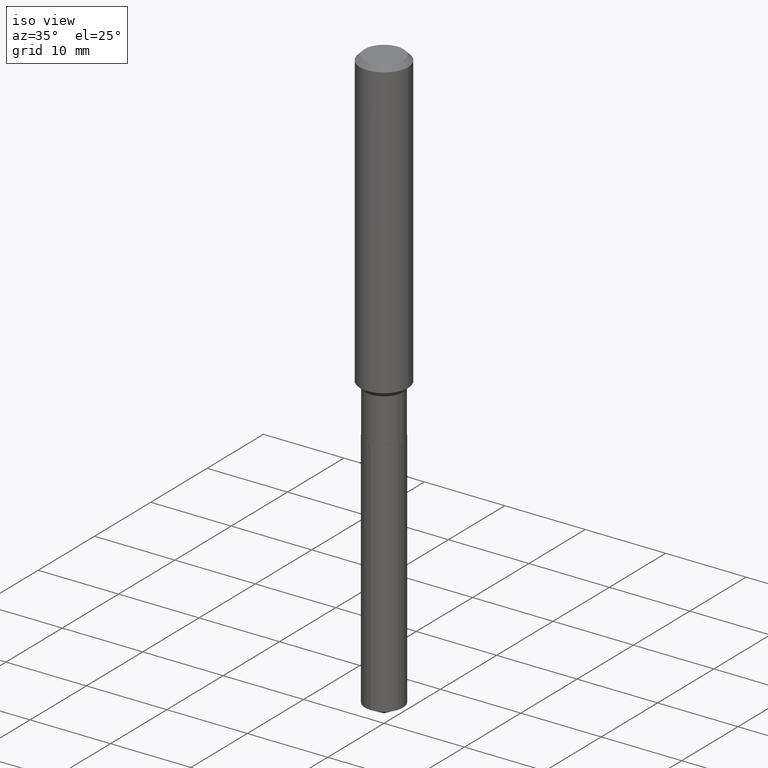
[diagram: clean part render]
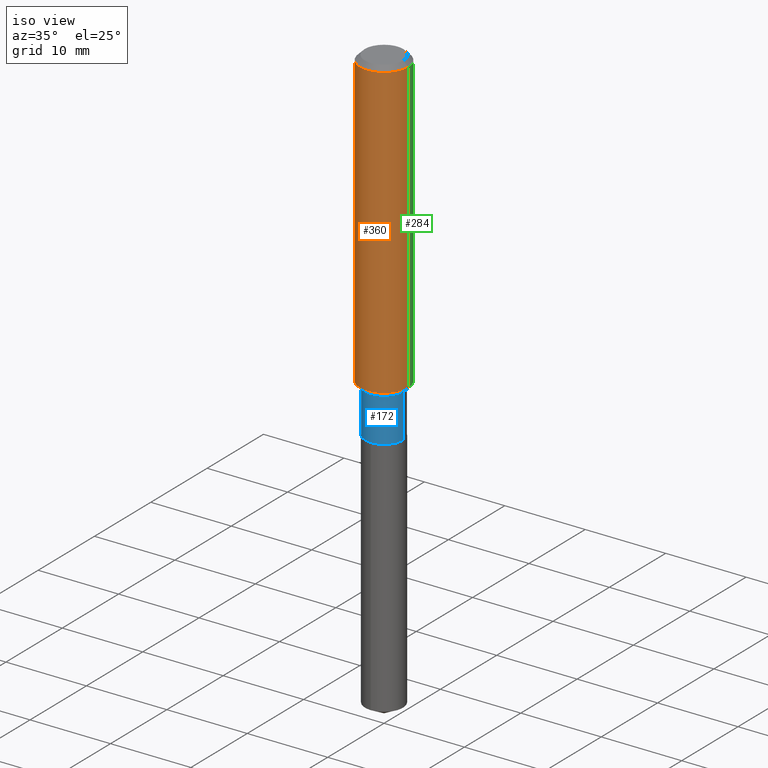
[diagram: same view with three faces highlighted in distinct colors, each labeled with its STEP entity id]
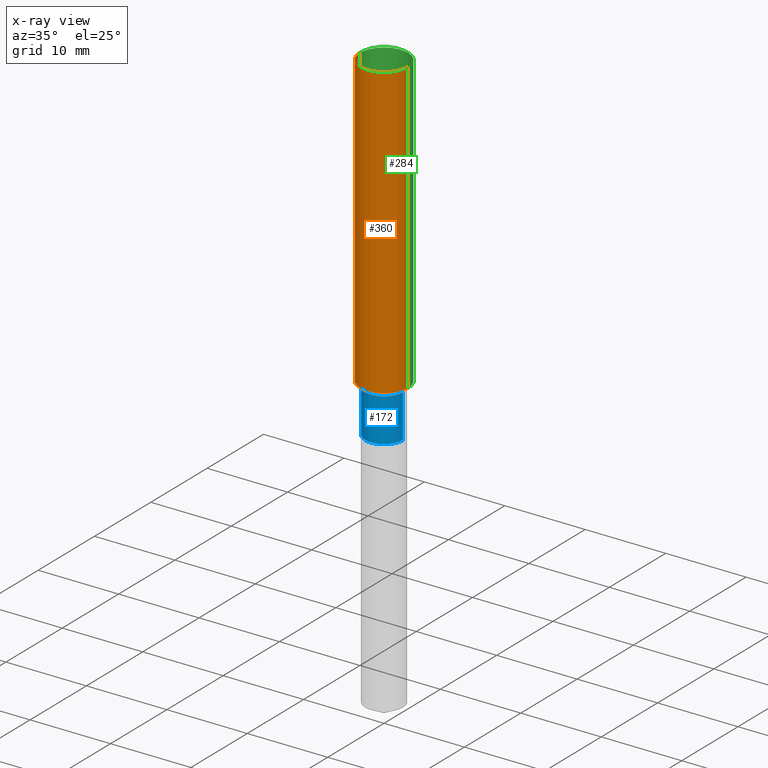
[diagram: x-ray of the same camera — body ghosted, the three highlighted faces saturated]
A machine part, iso view with three faces highlighted in distinct colors.
The next image is the same camera in x-ray (body ghosted, the three faces saturated) — at least one of them is partly hidden behind the body in this view.
Their STEP definitions:

[orange] entity #360 — the highlighted cylindrical surface (edge-blend (fillet) strip) has radius 2.9997 mm, axis along (-0, 0, 1).
#3 = AXIS2_PLACEMENT_3D ( 'NONE', #165, #20, #277 ) ;
#20 = DIRECTION ( 'NONE',  ( -2.445468806185136597E-29, 3.491481338843145583E-15, 1.000000000000000000 ) ) ;
#24 = CYLINDRICAL_SURFACE ( 'NONE', #432, 0.1181000000000000799 ) ;
#36 = CARTESIAN_POINT ( 'NONE',  ( 0.1181000000000000799, -8.246878922347486570E-16, 5.758764772215004644E-30 ) ) ;
#40 = VERTEX_POINT ( 'NONE', #84 ) ;
#47 = ORIENTED_EDGE ( 'NONE', *, *, #410, .T. ) ;
#61 = CIRCLE ( 'NONE', #3, 0.1181000000000001632 ) ;
#65 = DIRECTION ( 'NONE',  ( -2.445468806185136597E-29, 3.491481338843145583E-15, 1.000000000000000000 ) ) ;
#84 = CARTESIAN_POINT ( 'NONE',  ( -0.1181000000000001632, -4.198009156616326204E-15, -1.442699999999999871 ) ) ;
#89 = AXIS2_PLACEMENT_3D ( 'NONE', #185, #65, #177 ) ;
#98 = CARTESIAN_POINT ( 'NONE',  ( -0.1181000000000000799, 8.391509709326788873E-16, -5.809262341591047988E-30 ) ) ;
#105 = CARTESIAN_POINT ( 'NONE',  ( 0.1180999999999999966, -9.071566814582237199E-16, -0.02362000000000014088 ) ) ;
#123 = EDGE_CURVE ( 'NONE', #40, #253, #61, .T. ) ;
#129 = FACE_OUTER_BOUND ( 'NONE', #186, .T. ) ;
#137 = DIRECTION ( 'NONE',  ( 1.000000000000000000, -6.982962677686266711E-15, 4.876176775795936353E-29 ) ) ;
#139 = LINE ( 'NONE', #36, #154 ) ;
#154 = VECTOR ( 'NONE', #332, 39.37007874015748143 ) ;
#165 = CARTESIAN_POINT ( 'NONE',  ( 3.528077846683296639E-29, -5.037160127549005190E-15, -1.442699999999999871 ) ) ;
#169 = CARTESIAN_POINT ( 'NONE',  ( 0.000000000000000000, 0.000000000000000000, 0.000000000000000000 ) ) ;
#171 = CARTESIAN_POINT ( 'NONE',  ( -0.1180999999999999966, -1.720663487453560943E-15, -0.02362000000000014088 ) ) ;
#177 = DIRECTION ( 'NONE',  ( 1.000000000000000000, -6.982962677686266711E-15, 0.000000000000000000 ) ) ;
#185 = CARTESIAN_POINT ( 'NONE',  ( 5.776197320209327532E-31, -8.246878922347559293E-17, -0.02362000000000014088 ) ) ;
#186 = EDGE_LOOP ( 'NONE', ( #401, #443, #47, #199 ) ) ;
#199 = ORIENTED_EDGE ( 'NONE', *, *, #292, .F. ) ;
#250 = VERTEX_POINT ( 'NONE', #171 ) ;
#253 = VERTEX_POINT ( 'NONE', #472 ) ;
#277 = DIRECTION ( 'NONE',  ( 1.000000000000000000, -6.982962677686263555E-15, 0.000000000000000000 ) ) ;
#281 = DIRECTION ( 'NONE',  ( -2.445468806185136877E-29, 3.491481338843145188E-15, 1.000000000000000000 ) ) ;
#291 = VERTEX_POINT ( 'NONE', #105 ) ;
#292 = EDGE_CURVE ( 'NONE', #250, #291, #384, .T. ) ;
#331 = VECTOR ( 'NONE', #281, 39.37007874015748143 ) ;
#332 = DIRECTION ( 'NONE',  ( -2.445468806185136877E-29, 3.491481338843145188E-15, 1.000000000000000000 ) ) ;
#358 = DIRECTION ( 'NONE',  ( -2.445468806185136597E-29, 3.491481338843145583E-15, 1.000000000000000000 ) ) ;
#360 = ADVANCED_FACE ( 'NONE', ( #129 ), #24, .T. ) ;
#384 = CIRCLE ( 'NONE', #89, 0.1180999999999999966 ) ;
#394 = LINE ( 'NONE', #98, #331 ) ;
#401 = ORIENTED_EDGE ( 'NONE', *, *, #428, .F. ) ;
#410 = EDGE_CURVE ( 'NONE', #253, #291, #139, .T. ) ;
#428 = EDGE_CURVE ( 'NONE', #40, #250, #394, .T. ) ;
#432 = AXIS2_PLACEMENT_3D ( 'NONE', #169, #358, #137 ) ;
#443 = ORIENTED_EDGE ( 'NONE', *, *, #123, .T. ) ;
#472 = CARTESIAN_POINT ( 'NONE',  ( 0.1181000000000001632, -5.861848019783755031E-15, -1.442699999999999871 ) ) ;

[blue] entity #172 — the highlighted cylindrical surface (edge-blend (fillet) strip) has radius 2.3495 mm, axis along (-0, 0, 1).
#11 = VECTOR ( 'NONE', #121, 39.37007874015748143 ) ;
#16 = CYLINDRICAL_SURFACE ( 'NONE', #122, 0.09249999999999999889 ) ;
#28 = CARTESIAN_POINT ( 'NONE',  ( -0.09249999999999999889, 6.572520305780926640E-16, -4.550014958485788170E-30 ) ) ;
#33 = EDGE_CURVE ( 'NONE', #267, #180, #456, .T. ) ;
#56 = LINE ( 'NONE', #28, #288 ) ;
#70 = VERTEX_POINT ( 'NONE', #236 ) ;
#78 = CARTESIAN_POINT ( 'NONE',  ( -0.09249999999999999889, -4.839910763363498635E-15, -1.680600000000000316 ) ) ;
#100 = CARTESIAN_POINT ( 'NONE',  ( 0.09249999999999998501, -5.772466097509370892E-15, -1.468299999999999939 ) ) ;
#121 = DIRECTION ( 'NONE',  ( -2.445468806185136877E-29, 3.491481338843145188E-15, 1.000000000000000000 ) ) ;
#122 = AXIS2_PLACEMENT_3D ( 'NONE', #241, #312, #351 ) ;
#133 = AXIS2_PLACEMENT_3D ( 'NONE', #254, #396, #286 ) ;
#140 = CARTESIAN_POINT ( 'NONE',  ( 0.09249999999999999889, -6.513707585745771284E-15, -1.680600000000000316 ) ) ;
#172 = ADVANCED_FACE ( 'NONE', ( #393 ), #16, .T. ) ;
#180 = VERTEX_POINT ( 'NONE', #100 ) ;
#192 = ORIENTED_EDGE ( 'NONE', *, *, #272, .T. ) ;
#206 = DIRECTION ( 'NONE',  ( -2.445468806185136877E-29, 3.491481338843145188E-15, 1.000000000000000000 ) ) ;
#209 = EDGE_CURVE ( 'NONE', #333, #70, #56, .T. ) ;
#216 = ORIENTED_EDGE ( 'NONE', *, *, #479, .F. ) ;
#218 = DIRECTION ( 'NONE',  ( 1.000000000000000000, -6.982962677686265133E-15, 0.000000000000000000 ) ) ;
#229 = EDGE_LOOP ( 'NONE', ( #335, #192, #337, #216 ) ) ;
#236 = CARTESIAN_POINT ( 'NONE',  ( -0.09249999999999998501, -4.839910763363498635E-15, -1.468299999999999939 ) ) ;
#238 = AXIS2_PLACEMENT_3D ( 'NONE', #485, #296, #218 ) ;
#241 = CARTESIAN_POINT ( 'NONE',  ( 0.000000000000000000, 0.000000000000000000, 0.000000000000000000 ) ) ;
#254 = CARTESIAN_POINT ( 'NONE',  ( 3.590681848121635967E-29, -5.126542049823390906E-15, -1.468299999999999939 ) ) ;
#262 = CIRCLE ( 'NONE', #238, 0.09249999999999999889 ) ;
#267 = VERTEX_POINT ( 'NONE', #140 ) ;
#272 = EDGE_CURVE ( 'NONE', #333, #267, #262, .T. ) ;
#286 = DIRECTION ( 'NONE',  ( 1.000000000000000000, -6.982962677686265922E-15, 0.000000000000000000 ) ) ;
#288 = VECTOR ( 'NONE', #206, 39.37007874015748143 ) ;
#296 = DIRECTION ( 'NONE',  ( -2.445468806185136597E-29, 3.491481338843145583E-15, 1.000000000000000000 ) ) ;
#312 = DIRECTION ( 'NONE',  ( -2.445468806185136597E-29, 3.491481338843145583E-15, 1.000000000000000000 ) ) ;
#333 = VERTEX_POINT ( 'NONE', #78 ) ;
#335 = ORIENTED_EDGE ( 'NONE', *, *, #209, .F. ) ;
#337 = ORIENTED_EDGE ( 'NONE', *, *, #33, .T. ) ;
#351 = DIRECTION ( 'NONE',  ( 1.000000000000000000, -6.982962677686266711E-15, 4.876176775795935793E-29 ) ) ;
#383 = CIRCLE ( 'NONE', #133, 0.09249999999999998501 ) ;
#393 = FACE_OUTER_BOUND ( 'NONE', #229, .T. ) ;
#396 = DIRECTION ( 'NONE',  ( -2.445468806185136597E-29, 3.491481338843145583E-15, 1.000000000000000000 ) ) ;
#456 = LINE ( 'NONE', #461, #11 ) ;
#461 = CARTESIAN_POINT ( 'NONE',  ( 0.09249999999999999889, -6.459240476859796904E-16, 4.510463517611240749E-30 ) ) ;
#479 = EDGE_CURVE ( 'NONE', #70, #180, #383, .T. ) ;
#485 = CARTESIAN_POINT ( 'NONE',  ( 4.109854875674741495E-29, -5.867783538059791298E-15, -1.680600000000000316 ) ) ;

[green] entity #284 — the highlighted cylindrical surface (edge-blend (fillet) strip) has radius 2.9997 mm, axis along (-0, 0, 1).
#15 = DIRECTION ( 'NONE',  ( 1.000000000000000000, -6.982962677686266711E-15, 0.000000000000000000 ) ) ;
#32 = DIRECTION ( 'NONE',  ( 1.000000000000000000, -6.982962677686266711E-15, 4.876176775795936353E-29 ) ) ;
#36 = CARTESIAN_POINT ( 'NONE',  ( 0.1181000000000000799, -8.246878922347486570E-16, 5.758764772215004644E-30 ) ) ;
#40 = VERTEX_POINT ( 'NONE', #84 ) ;
#84 = CARTESIAN_POINT ( 'NONE',  ( -0.1181000000000001632, -4.198009156616326204E-15, -1.442699999999999871 ) ) ;
#96 = DIRECTION ( 'NONE',  ( -2.445468806185136597E-29, 3.491481338843145583E-15, 1.000000000000000000 ) ) ;
#98 = CARTESIAN_POINT ( 'NONE',  ( -0.1181000000000000799, 8.391509709326788873E-16, -5.809262341591047988E-30 ) ) ;
#105 = CARTESIAN_POINT ( 'NONE',  ( 0.1180999999999999966, -9.071566814582237199E-16, -0.02362000000000014088 ) ) ;
#112 = AXIS2_PLACEMENT_3D ( 'NONE', #391, #211, #276 ) ;
#125 = EDGE_LOOP ( 'NONE', ( #285, #489, #148, #350 ) ) ;
#139 = LINE ( 'NONE', #36, #154 ) ;
#144 = DIRECTION ( 'NONE',  ( -2.445468806185136597E-29, 3.491481338843145583E-15, 1.000000000000000000 ) ) ;
#148 = ORIENTED_EDGE ( 'NONE', *, *, #347, .F. ) ;
#154 = VECTOR ( 'NONE', #332, 39.37007874015748143 ) ;
#171 = CARTESIAN_POINT ( 'NONE',  ( -0.1180999999999999966, -1.720663487453560943E-15, -0.02362000000000014088 ) ) ;
#176 = AXIS2_PLACEMENT_3D ( 'NONE', #327, #144, #32 ) ;
#200 = CARTESIAN_POINT ( 'NONE',  ( 5.776197320209327532E-31, -8.246878922347559293E-17, -0.02362000000000014088 ) ) ;
#211 = DIRECTION ( 'NONE',  ( -2.445468806185136597E-29, 3.491481338843145583E-15, 1.000000000000000000 ) ) ;
#250 = VERTEX_POINT ( 'NONE', #171 ) ;
#252 = AXIS2_PLACEMENT_3D ( 'NONE', #200, #96, #15 ) ;
#253 = VERTEX_POINT ( 'NONE', #472 ) ;
#268 = CIRCLE ( 'NONE', #112, 0.1181000000000001632 ) ;
#276 = DIRECTION ( 'NONE',  ( 1.000000000000000000, -6.982962677686263555E-15, 0.000000000000000000 ) ) ;
#281 = DIRECTION ( 'NONE',  ( -2.445468806185136877E-29, 3.491481338843145188E-15, 1.000000000000000000 ) ) ;
#284 = ADVANCED_FACE ( 'NONE', ( #442 ), #362, .T. ) ;
#285 = ORIENTED_EDGE ( 'NONE', *, *, #353, .T. ) ;
#291 = VERTEX_POINT ( 'NONE', #105 ) ;
#327 = CARTESIAN_POINT ( 'NONE',  ( 0.000000000000000000, 0.000000000000000000, 0.000000000000000000 ) ) ;
#331 = VECTOR ( 'NONE', #281, 39.37007874015748143 ) ;
#332 = DIRECTION ( 'NONE',  ( -2.445468806185136877E-29, 3.491481338843145188E-15, 1.000000000000000000 ) ) ;
#347 = EDGE_CURVE ( 'NONE', #291, #250, #468, .T. ) ;
#350 = ORIENTED_EDGE ( 'NONE', *, *, #410, .F. ) ;
#353 = EDGE_CURVE ( 'NONE', #253, #40, #268, .T. ) ;
#362 = CYLINDRICAL_SURFACE ( 'NONE', #176, 0.1181000000000000799 ) ;
#391 = CARTESIAN_POINT ( 'NONE',  ( 3.528077846683296639E-29, -5.037160127549005190E-15, -1.442699999999999871 ) ) ;
#394 = LINE ( 'NONE', #98, #331 ) ;
#410 = EDGE_CURVE ( 'NONE', #253, #291, #139, .T. ) ;
#428 = EDGE_CURVE ( 'NONE', #40, #250, #394, .T. ) ;
#442 = FACE_OUTER_BOUND ( 'NONE', #125, .T. ) ;
#468 = CIRCLE ( 'NONE', #252, 0.1180999999999999966 ) ;
#472 = CARTESIAN_POINT ( 'NONE',  ( 0.1181000000000001632, -5.861848019783755031E-15, -1.442699999999999871 ) ) ;
#489 = ORIENTED_EDGE ( 'NONE', *, *, #428, .T. ) ;